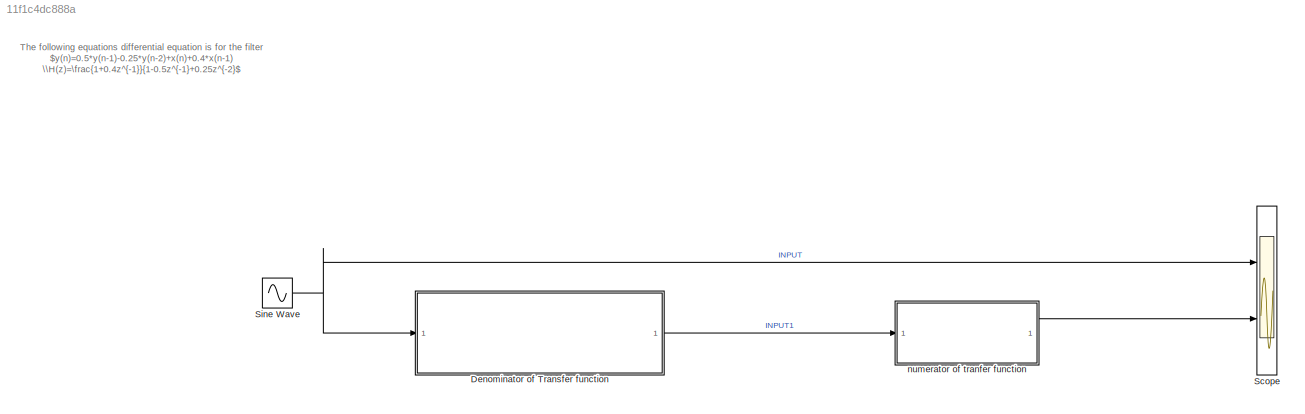
MODEL slx_11f1c4dc888a
KIND model
CONFIG AbsTol = auto
CONFIG EnableMultiTasking = off
CONFIG FixedStep = auto
CONFIG MaxStep = auto
CONFIG MinStep = auto
CONFIG RelTol = 1e-3
CONFIG SampleTimeConstraint = Unconstrained
CONFIG SolverName = VariableStepAuto
CONFIG StartTime = 0.0
CONFIG StopTime = 10.0
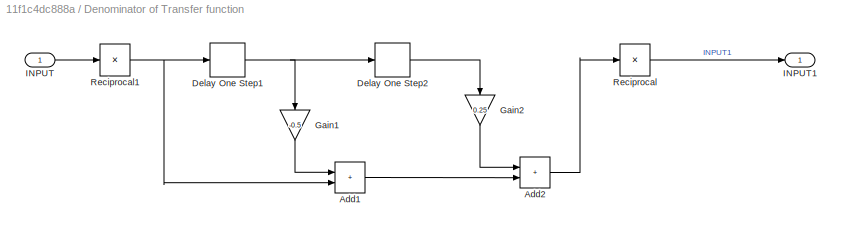
BLOCK [SubSystem] Denominator of Transfer function
  Ports = [1, 1]
  RequestExecContextInheritance = off
  TreatAsAtomicUnit = on
BLOCK [Sum] Denominator of Transfer function/Add1
  IconShape = rectangular
  Ports = [2, 1]
BLOCK [Sum] Denominator of Transfer function/Add2
  IconShape = rectangular
  Ports = [2, 1]
BLOCK [Delay] Denominator of Transfer function/Delay One Step1
  DelayLength = 1
  InputPortMap = u0
  Ports = [1, 1]
BLOCK [Delay] Denominator of Transfer function/Delay One Step2
  DelayLength = 1
  InputPortMap = u0
  Ports = [1, 1]
BLOCK [Gain] Denominator of Transfer function/Gain1
  Gain = -0.5
  NameLocation = left
BLOCK [Gain] Denominator of Transfer function/Gain2
  Gain = 0.25
  NameLocation = left
BLOCK [Inport] Denominator of Transfer function/INPUT
BLOCK [Outport] Denominator of Transfer function/INPUT1
BLOCK [Product] Denominator of Transfer function/Reciprocal
  Inputs = /
  Ports = [1, 1]
BLOCK [Product] Denominator of Transfer function/Reciprocal1
  Inputs = /
  Ports = [1, 1]
BLOCK [Scope] Scope
  Floating = off
  NumInputPorts = 2
  Ports = [2]
  ScopeSpecificationString = Simulink.scopes.TimeScopeBlockCfg('CurrentConfiguration', extmgr.ConfigurationSet(extmgr.Configuration('Core','General UI',true),extmgr.Configuration('Core','Source UI',true),extmgr.Configuration('Sources','WiredSimulink',true),extmgr.Configuration('Visuals','Time Domain',true,'SerializedDisplays',{struct('MinYLimReal','-1.24563','MaxYLimReal','1.24904','YLabelReal','','MinYLimMag','0.00000','MaxY...<+1990ch>
BLOCK [Sin] Sine Wave
  Ports = [0, 1]
  SampleTime = 0
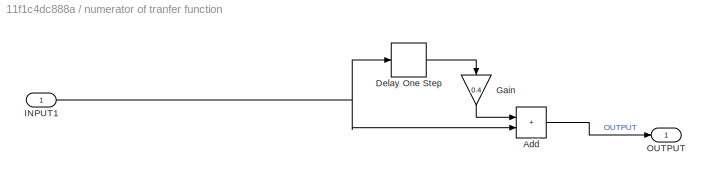
BLOCK [SubSystem] numerator of tranfer function
  Ports = [1, 1]
  RequestExecContextInheritance = off
  TreatAsAtomicUnit = on
BLOCK [Sum] numerator of tranfer function/Add
  IconShape = rectangular
  Ports = [2, 1]
BLOCK [Delay] numerator of tranfer function/Delay One Step
  DelayLength = 1
  InputPortMap = u0
  Ports = [1, 1]
BLOCK [Gain] numerator of tranfer function/Gain
  Gain = 0.4
  NameLocation = left
BLOCK [Inport] numerator of tranfer function/INPUT1
BLOCK [Outport] numerator of tranfer function/OUTPUT
ANNOTATION (root): The following equations differential equation is for the filter $y(n)=0.5*y(n-1)-0.25*y(n-2)+x(n)+0.4*x(n-1) \\H(z)=\frac{1+0.4z^{-1}}{1-0.5z^{-1}+0.25z^{-2}$
LINE Denominator of Transfer function/Add1:1 -> Denominator of Transfer function/Add2:2
LINE Denominator of Transfer function/Add2:1 -> Denominator of Transfer function/Reciprocal:1
NET Denominator of Transfer function/Delay One Step1:1 -> Denominator of Transfer function/Delay One Step2:1, Denominator of Transfer function/Gain1:1
LINE Denominator of Transfer function/Delay One Step2:1 -> Denominator of Transfer function/Gain2:1
LINE Denominator of Transfer function/Gain1:1 -> Denominator of Transfer function/Add1:1
LINE Denominator of Transfer function/Gain2:1 -> Denominator of Transfer function/Add2:1
LINE Denominator of Transfer function/INPUT:1 -> Denominator of Transfer function/Reciprocal1:1
NET Denominator of Transfer function/Reciprocal1:1 -> Denominator of Transfer function/Add1:2, Denominator of Transfer function/Delay One Step1:1
LINE Denominator of Transfer function/Reciprocal:1 -> Denominator of Transfer function/INPUT1:1
LINE Denominator of Transfer function:1 -> numerator of tranfer function:1
NET Sine Wave:1 -> Denominator of Transfer function:1, Scope:1
LINE numerator of tranfer function/Add:1 -> numerator of tranfer function/OUTPUT:1
LINE numerator of tranfer function/Delay One Step:1 -> numerator of tranfer function/Gain:1
LINE numerator of tranfer function/Gain:1 -> numerator of tranfer function/Add:1
NET numerator of tranfer function/INPUT1:1 -> numerator of tranfer function/Add:2, numerator of tranfer function/Delay One Step:1
LINE numerator of tranfer function:1 -> Scope:2
note: NET lines group one-source signal fan-out (src -> all destinations, sorted); 1:1 wires keep LINE
